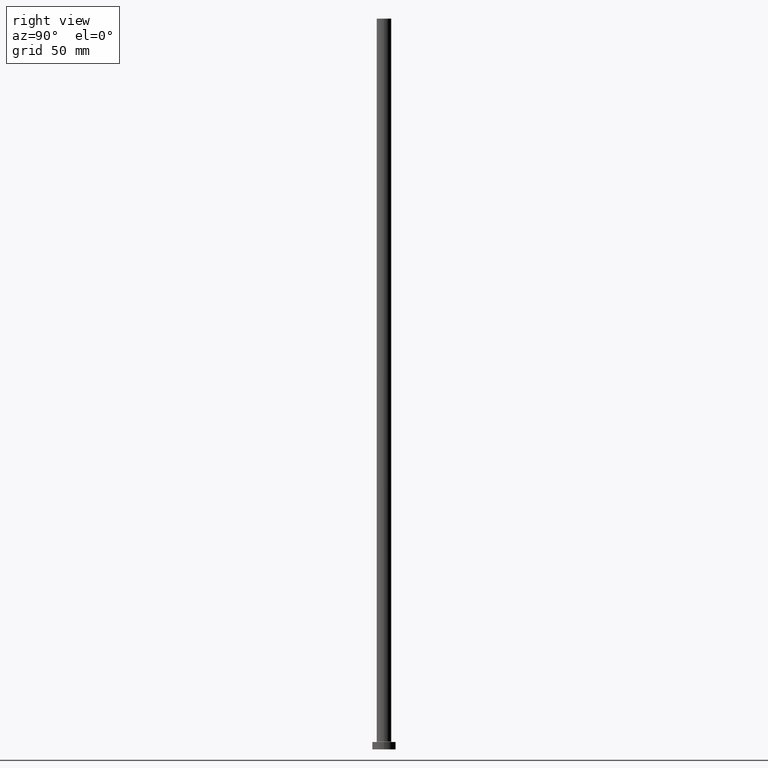
[diagram: clean part render]
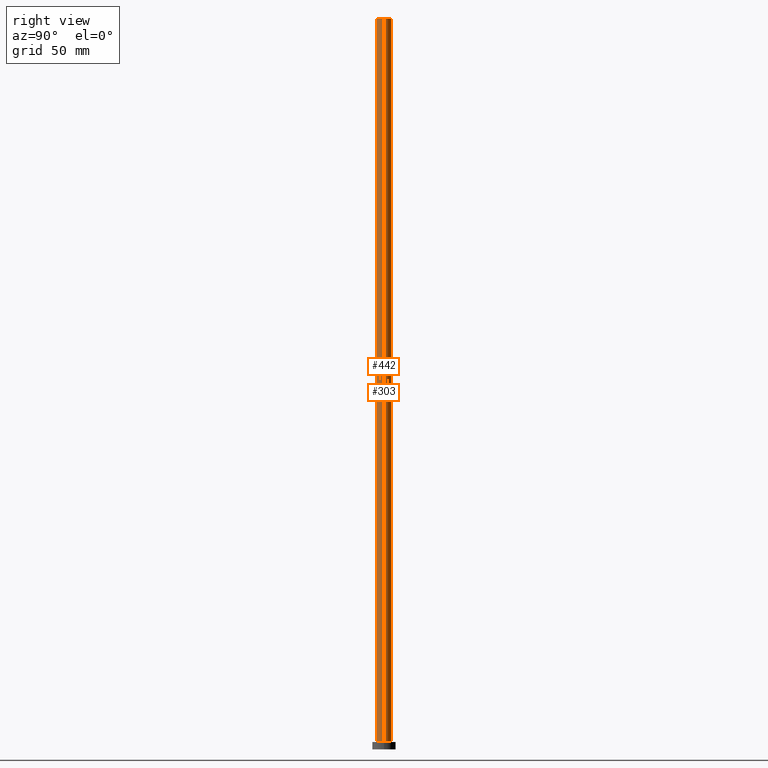
[diagram: same view with one multi-face feature highlighted, each face labeled with its STEP entity id]
A machine part, right view. The highlighted faces form ONE feature: a constant-radius fillet chain: 2 tangent blend faces with common blend radius 5 mm. The faces share edges in the B-rep.
Their STEP definitions:
[1] entity #303 (Cylinder):
#5 = LINE ( 'NONE', #420, #336 ) ;
#6 = CARTESIAN_POINT ( 'NONE',  ( 0.000000000000000000, 0.000000000000000000, 5.500000000000005329 ) ) ;
#14 = CIRCLE ( 'NONE', #326, 5.000000000000000000 ) ;
#17 = ORIENTED_EDGE ( 'NONE', *, *, #68, .T. ) ;
#19 = DIRECTION ( 'NONE',  ( -0.000000000000000000, -0.000000000000000000, -1.000000000000000000 ) ) ;
#25 = FACE_OUTER_BOUND ( 'NONE', #375, .T. ) ;
#28 = DIRECTION ( 'NONE',  ( 1.000000000000000000, 0.000000000000000000, 0.000000000000000000 ) ) ;
#44 = VERTEX_POINT ( 'NONE', #75 ) ;
#68 = EDGE_CURVE ( 'NONE', #44, #292, #314, .T. ) ;
#71 = DIRECTION ( 'NONE',  ( 1.000000000000000000, 0.000000000000000000, 0.000000000000000000 ) ) ;
#72 = ORIENTED_EDGE ( 'NONE', *, *, #190, .F. ) ;
#75 = CARTESIAN_POINT ( 'NONE',  ( 5.000000000000000000, 6.123233995736766282E-16, 5.500000000000005329 ) ) ;
#151 = AXIS2_PLACEMENT_3D ( 'NONE', #169, #19, #373 ) ;
#166 = EDGE_CURVE ( 'NONE', #370, #44, #339, .T. ) ;
#169 = CARTESIAN_POINT ( 'NONE',  ( 0.000000000000000000, 0.000000000000000000, 500.0000000000000000 ) ) ;
#190 = EDGE_CURVE ( 'NONE', #223, #292, #5, .T. ) ;
#223 = VERTEX_POINT ( 'NONE', #396 ) ;
#242 = DIRECTION ( 'NONE',  ( -0.000000000000000000, -0.000000000000000000, -1.000000000000000000 ) ) ;
#249 = ORIENTED_EDGE ( 'NONE', *, *, #327, .F. ) ;
#250 = ORIENTED_EDGE ( 'NONE', *, *, #166, .T. ) ;
#262 = CARTESIAN_POINT ( 'NONE',  ( -5.000000000000000000, 0.000000000000000000, 5.500000000000005329 ) ) ;
#265 = DIRECTION ( 'NONE',  ( 0.000000000000000000, 0.000000000000000000, 1.000000000000000000 ) ) ;
#277 = CARTESIAN_POINT ( 'NONE',  ( 5.000000000000000000, 6.123233995736766282E-16, 500.0000000000000000 ) ) ;
#292 = VERTEX_POINT ( 'NONE', #262 ) ;
#295 = CARTESIAN_POINT ( 'NONE',  ( 0.000000000000000000, 0.000000000000000000, 500.0000000000000000 ) ) ;
#303 = ADVANCED_FACE ( 'NONE', ( #25 ), #371, .T. ) ;
#314 = CIRCLE ( 'NONE', #414, 5.000000000000000000 ) ;
#326 = AXIS2_PLACEMENT_3D ( 'NONE', #295, #265, #28 ) ;
#327 = EDGE_CURVE ( 'NONE', #370, #223, #14, .T. ) ;
#336 = VECTOR ( 'NONE', #242, 1000.000000000000000 ) ;
#339 = LINE ( 'NONE', #445, #347 ) ;
#347 = VECTOR ( 'NONE', #416, 1000.000000000000000 ) ;
#370 = VERTEX_POINT ( 'NONE', #277 ) ;
#371 = CYLINDRICAL_SURFACE ( 'NONE', #151, 5.000000000000000000 ) ;
#373 = DIRECTION ( 'NONE',  ( -1.000000000000000000, 0.000000000000000000, 0.000000000000000000 ) ) ;
#375 = EDGE_LOOP ( 'NONE', ( #249, #250, #17, #72 ) ) ;
#396 = CARTESIAN_POINT ( 'NONE',  ( -5.000000000000000000, 0.000000000000000000, 500.0000000000000000 ) ) ;
#414 = AXIS2_PLACEMENT_3D ( 'NONE', #6, #426, #71 ) ;
#416 = DIRECTION ( 'NONE',  ( -0.000000000000000000, -0.000000000000000000, -1.000000000000000000 ) ) ;
#420 = CARTESIAN_POINT ( 'NONE',  ( -5.000000000000000000, 0.000000000000000000, 500.0000000000000000 ) ) ;
#426 = DIRECTION ( 'NONE',  ( 0.000000000000000000, 0.000000000000000000, 1.000000000000000000 ) ) ;
#445 = CARTESIAN_POINT ( 'NONE',  ( 5.000000000000000000, 6.123233995736766282E-16, 500.0000000000000000 ) ) ;
[2] entity #442 (Cylinder):
#5 = LINE ( 'NONE', #420, #336 ) ;
#31 = ORIENTED_EDGE ( 'NONE', *, *, #166, .F. ) ;
#44 = VERTEX_POINT ( 'NONE', #75 ) ;
#49 = AXIS2_PLACEMENT_3D ( 'NONE', #280, #319, #355 ) ;
#75 = CARTESIAN_POINT ( 'NONE',  ( 5.000000000000000000, 6.123233995736766282E-16, 5.500000000000005329 ) ) ;
#76 = AXIS2_PLACEMENT_3D ( 'NONE', #236, #104, #239 ) ;
#82 = EDGE_LOOP ( 'NONE', ( #31, #363, #399, #378 ) ) ;
#104 = DIRECTION ( 'NONE',  ( 0.000000000000000000, 0.000000000000000000, 1.000000000000000000 ) ) ;
#166 = EDGE_CURVE ( 'NONE', #370, #44, #339, .T. ) ;
#173 = AXIS2_PLACEMENT_3D ( 'NONE', #317, #397, #455 ) ;
#179 = EDGE_CURVE ( 'NONE', #223, #370, #380, .T. ) ;
#190 = EDGE_CURVE ( 'NONE', #223, #292, #5, .T. ) ;
#223 = VERTEX_POINT ( 'NONE', #396 ) ;
#236 = CARTESIAN_POINT ( 'NONE',  ( 0.000000000000000000, 0.000000000000000000, 500.0000000000000000 ) ) ;
#239 = DIRECTION ( 'NONE',  ( 1.000000000000000000, 0.000000000000000000, 0.000000000000000000 ) ) ;
#242 = DIRECTION ( 'NONE',  ( -0.000000000000000000, -0.000000000000000000, -1.000000000000000000 ) ) ;
#262 = CARTESIAN_POINT ( 'NONE',  ( -5.000000000000000000, 0.000000000000000000, 5.500000000000005329 ) ) ;
#263 = CYLINDRICAL_SURFACE ( 'NONE', #49, 5.000000000000000000 ) ;
#277 = CARTESIAN_POINT ( 'NONE',  ( 5.000000000000000000, 6.123233995736766282E-16, 500.0000000000000000 ) ) ;
#280 = CARTESIAN_POINT ( 'NONE',  ( 0.000000000000000000, 0.000000000000000000, 500.0000000000000000 ) ) ;
#292 = VERTEX_POINT ( 'NONE', #262 ) ;
#317 = CARTESIAN_POINT ( 'NONE',  ( 0.000000000000000000, 0.000000000000000000, 5.500000000000005329 ) ) ;
#319 = DIRECTION ( 'NONE',  ( -0.000000000000000000, -0.000000000000000000, -1.000000000000000000 ) ) ;
#336 = VECTOR ( 'NONE', #242, 1000.000000000000000 ) ;
#337 = EDGE_CURVE ( 'NONE', #292, #44, #392, .T. ) ;
#339 = LINE ( 'NONE', #445, #347 ) ;
#347 = VECTOR ( 'NONE', #416, 1000.000000000000000 ) ;
#355 = DIRECTION ( 'NONE',  ( -1.000000000000000000, 0.000000000000000000, 0.000000000000000000 ) ) ;
#363 = ORIENTED_EDGE ( 'NONE', *, *, #179, .F. ) ;
#370 = VERTEX_POINT ( 'NONE', #277 ) ;
#378 = ORIENTED_EDGE ( 'NONE', *, *, #337, .T. ) ;
#380 = CIRCLE ( 'NONE', #76, 5.000000000000000000 ) ;
#392 = CIRCLE ( 'NONE', #173, 5.000000000000000000 ) ;
#396 = CARTESIAN_POINT ( 'NONE',  ( -5.000000000000000000, 0.000000000000000000, 500.0000000000000000 ) ) ;
#397 = DIRECTION ( 'NONE',  ( 0.000000000000000000, 0.000000000000000000, 1.000000000000000000 ) ) ;
#398 = FACE_OUTER_BOUND ( 'NONE', #82, .T. ) ;
#399 = ORIENTED_EDGE ( 'NONE', *, *, #190, .T. ) ;
#416 = DIRECTION ( 'NONE',  ( -0.000000000000000000, -0.000000000000000000, -1.000000000000000000 ) ) ;
#420 = CARTESIAN_POINT ( 'NONE',  ( -5.000000000000000000, 0.000000000000000000, 500.0000000000000000 ) ) ;
#442 = ADVANCED_FACE ( 'NONE', ( #398 ), #263, .T. ) ;
#445 = CARTESIAN_POINT ( 'NONE',  ( 5.000000000000000000, 6.123233995736766282E-16, 500.0000000000000000 ) ) ;
#455 = DIRECTION ( 'NONE',  ( 1.000000000000000000, 0.000000000000000000, 0.000000000000000000 ) ) ;